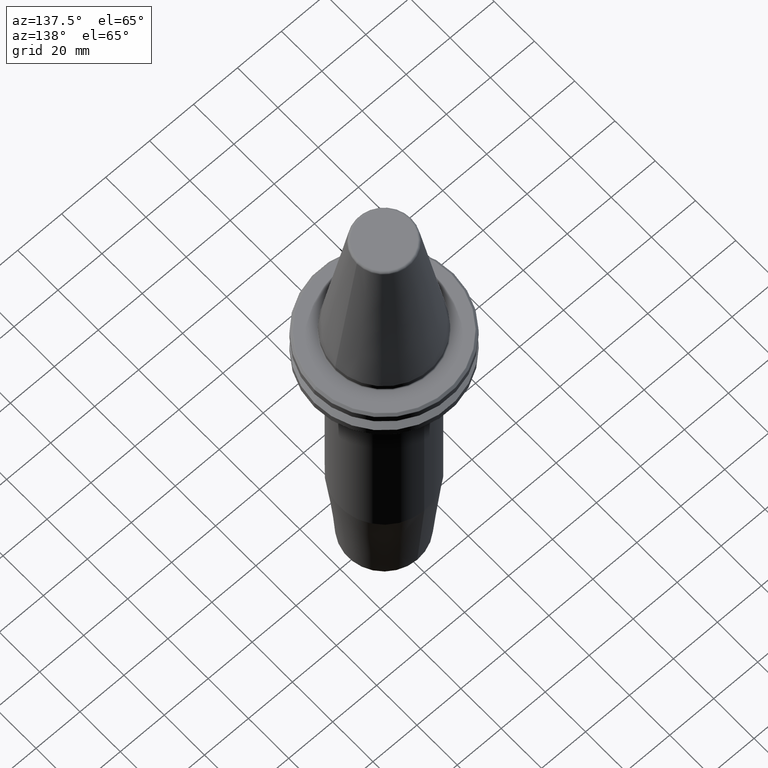
[diagram: clean part render]
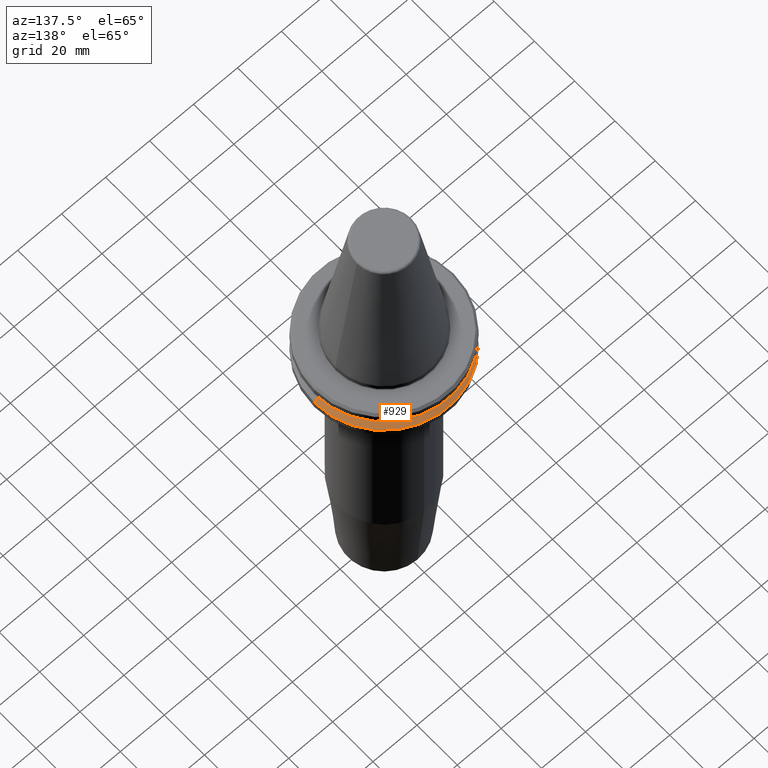
[diagram: same view with one face highlighted and labeled with its STEP entity id]
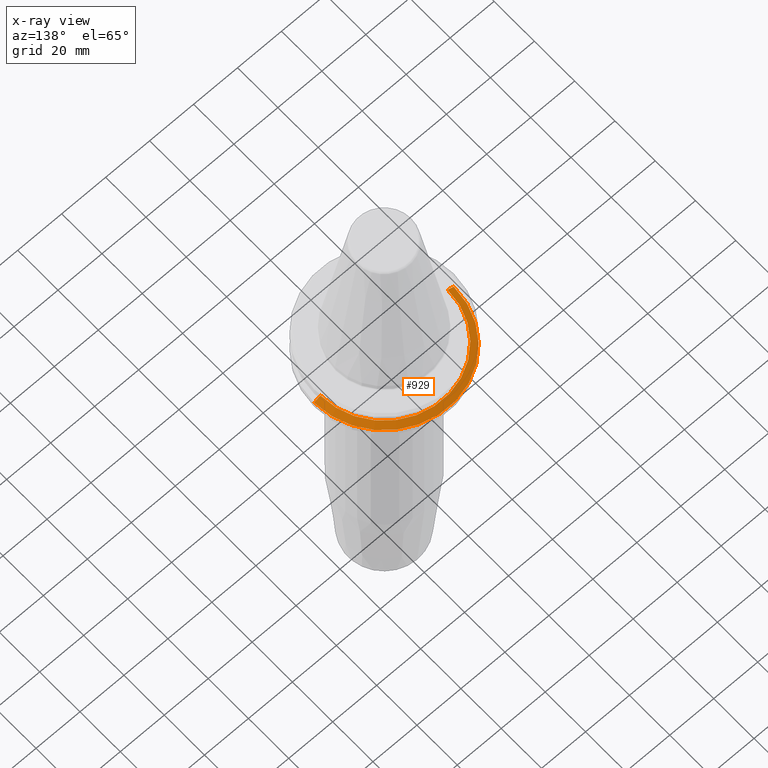
[diagram: x-ray of the same camera — body ghosted, the highlighted face saturated]
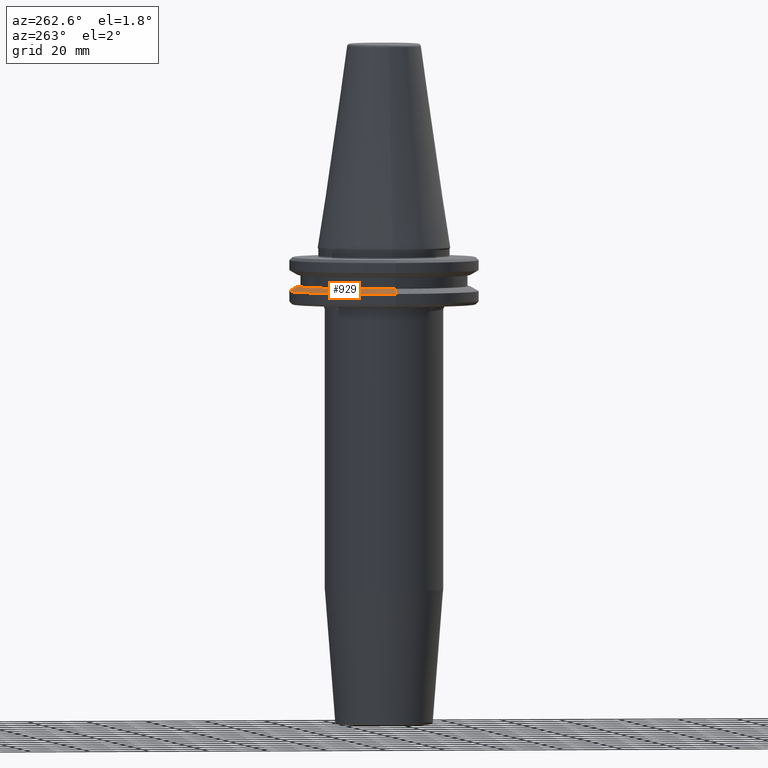
[diagram: same view with one face highlighted and labeled with its STEP entity id]
A machine part, auxiliary view. The second image highlights one B-rep face of the part: STEP entity #929.
The next image is the same camera in x-ray: the body ghosted, the highlighted face saturated — about 0% of this face is hidden behind the body in this view.
A second angle (auxiliary view) of the same face is appended — the face is thin or edge-on in the first view.
In plain terms, the highlighted conical surface has half-angle 60 deg.
Its self-contained STEP definition (entity closure, byte-faithful):
#8 = ORIENTED_EDGE ( 'NONE', *, *, #737, .T. ) ;
#27 = CARTESIAN_POINT ( 'NONE',  ( -28.94089653438085100, 0.0000000000000000000, -13.00000000000001100 ) ) ;
#33 = DIRECTION ( 'NONE',  ( 1.000000000000000000, 0.0000000000000000000, 0.0000000000000000000 ) ) ;
#51 = VECTOR ( 'NONE', #933, 999.9999999999998900 ) ;
#54 = EDGE_CURVE ( 'NONE', #605, #711, #1140, .T. ) ;
#132 = CARTESIAN_POINT ( 'NONE',  ( -28.94089653438085100, 0.0000000000000000000, -13.00000000000001100 ) ) ;
#163 = CARTESIAN_POINT ( 'NONE',  ( 0.0000000000000000000, 0.0000000000000000000, -13.00000000000001100 ) ) ;
#217 = CIRCLE ( 'NONE', #714, 28.94089653438085100 ) ;
#219 = EDGE_LOOP ( 'NONE', ( #399, #645, #8, #1042 ) ) ;
#239 = DIRECTION ( 'NONE',  ( 0.0000000000000000000, 0.0000000000000000000, -1.000000000000000000 ) ) ;
#301 = FACE_OUTER_BOUND ( 'NONE', #219, .T. ) ;
#310 = CARTESIAN_POINT ( 'NONE',  ( 31.75000000000000000, 0.0000000000000000000, -14.62183664205671200 ) ) ;
#312 = CARTESIAN_POINT ( 'NONE',  ( 28.94089653438085100, 3.716245608910634800E-015, -13.00000000000001100 ) ) ;
#335 = LINE ( 'NONE', #27, #51 ) ;
#345 = EDGE_CURVE ( 'NONE', #356, #1014, #335, .T. ) ;
#356 = VERTEX_POINT ( 'NONE', #132 ) ;
#399 = ORIENTED_EDGE ( 'NONE', *, *, #704, .F. ) ;
#429 = VECTOR ( 'NONE', #1182, 999.9999999999998900 ) ;
#432 = CARTESIAN_POINT ( 'NONE',  ( 0.0000000000000000000, 0.0000000000000000000, -13.00000000000001100 ) ) ;
#438 = DIRECTION ( 'NONE',  ( -1.000000000000000000, 0.0000000000000000000, 0.0000000000000000000 ) ) ;
#445 = DIRECTION ( 'NONE',  ( -0.0000000000000000000, -0.0000000000000000000, 1.000000000000000000 ) ) ;
#463 = CARTESIAN_POINT ( 'NONE',  ( 28.94089653438085100, 3.544237630528423800E-015, -13.00000000000001100 ) ) ;
#512 = AXIS2_PLACEMENT_3D ( 'NONE', #432, #239, #438 ) ;
#568 = DIRECTION ( 'NONE',  ( 1.000000000000000000, 0.0000000000000000000, 0.0000000000000000000 ) ) ;
#605 = VERTEX_POINT ( 'NONE', #312 ) ;
#645 = ORIENTED_EDGE ( 'NONE', *, *, #54, .T. ) ;
#664 = CARTESIAN_POINT ( 'NONE',  ( 0.0000000000000000000, 0.0000000000000000000, -14.62183664205671200 ) ) ;
#704 = EDGE_CURVE ( 'NONE', #605, #356, #217, .T. ) ;
#711 = VERTEX_POINT ( 'NONE', #310 ) ;
#714 = AXIS2_PLACEMENT_3D ( 'NONE', #163, #445, #33 ) ;
#737 = EDGE_CURVE ( 'NONE', #711, #1014, #948, .T. ) ;
#777 = DIRECTION ( 'NONE',  ( -0.0000000000000000000, -0.0000000000000000000, 1.000000000000000000 ) ) ;
#898 = CONICAL_SURFACE ( 'NONE', #512, 28.94089653438085100, 1.047197551196604300 ) ;
#929 = ADVANCED_FACE ( 'NONE', ( #301 ), #898, .T. ) ;
#933 = DIRECTION ( 'NONE',  ( -0.8660254037844420400, 0.0000000000000000000, -0.4999999999999943900 ) ) ;
#944 = CARTESIAN_POINT ( 'NONE',  ( -31.75000000000000000, 3.888253587292846500E-015, -14.62183664205671200 ) ) ;
#948 = CIRCLE ( 'NONE', #1153, 31.75000000000000000 ) ;
#1014 = VERTEX_POINT ( 'NONE', #944 ) ;
#1042 = ORIENTED_EDGE ( 'NONE', *, *, #345, .F. ) ;
#1140 = LINE ( 'NONE', #463, #429 ) ;
#1153 = AXIS2_PLACEMENT_3D ( 'NONE', #664, #777, #568 ) ;
#1182 = DIRECTION ( 'NONE',  ( 0.8660254037844420400, 1.060575238724911000E-016, -0.4999999999999943900 ) ) ;